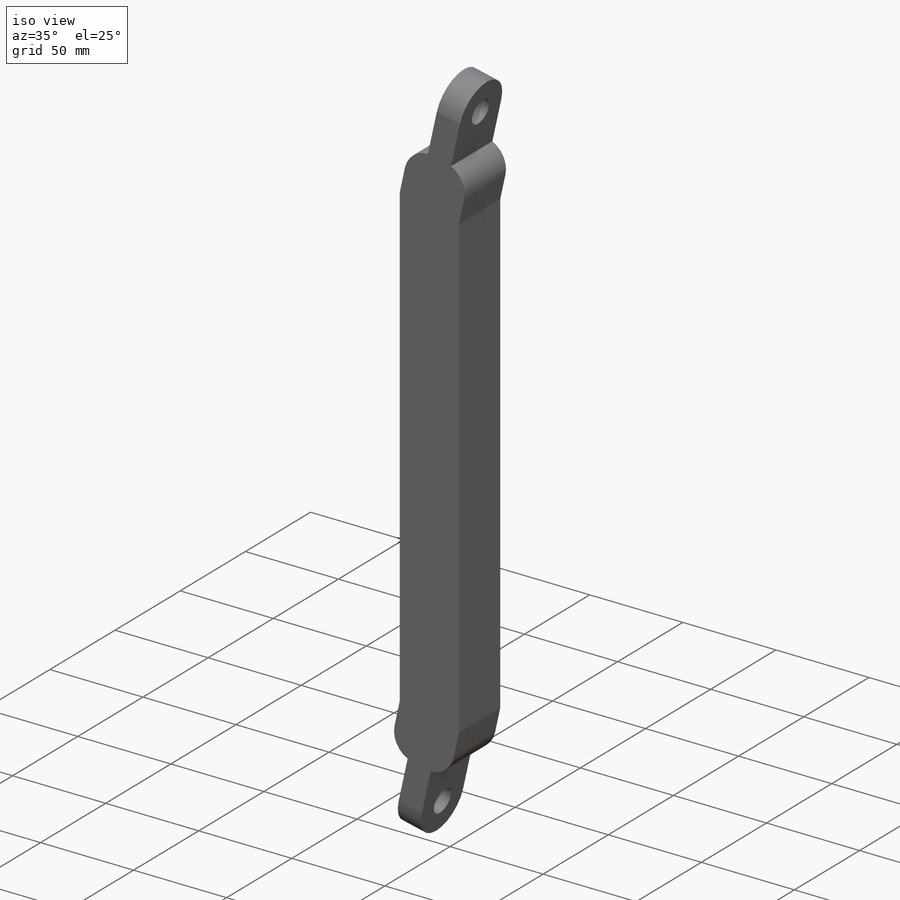
[diagram: iso view]
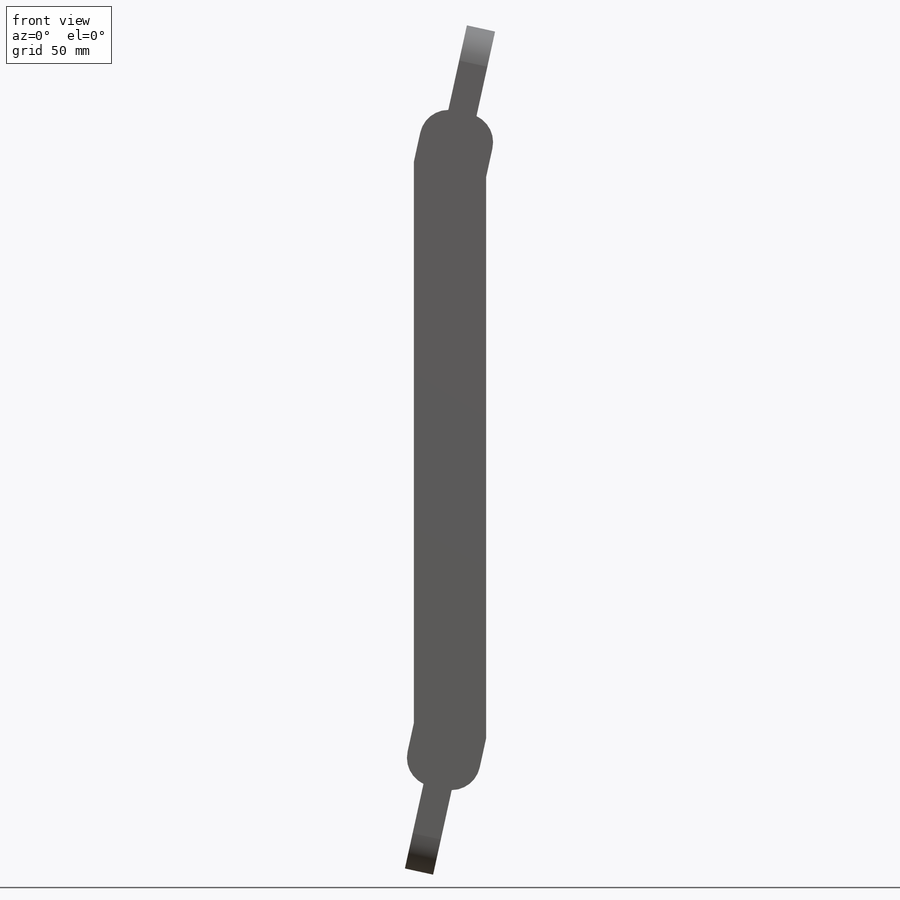
[diagram: front view]
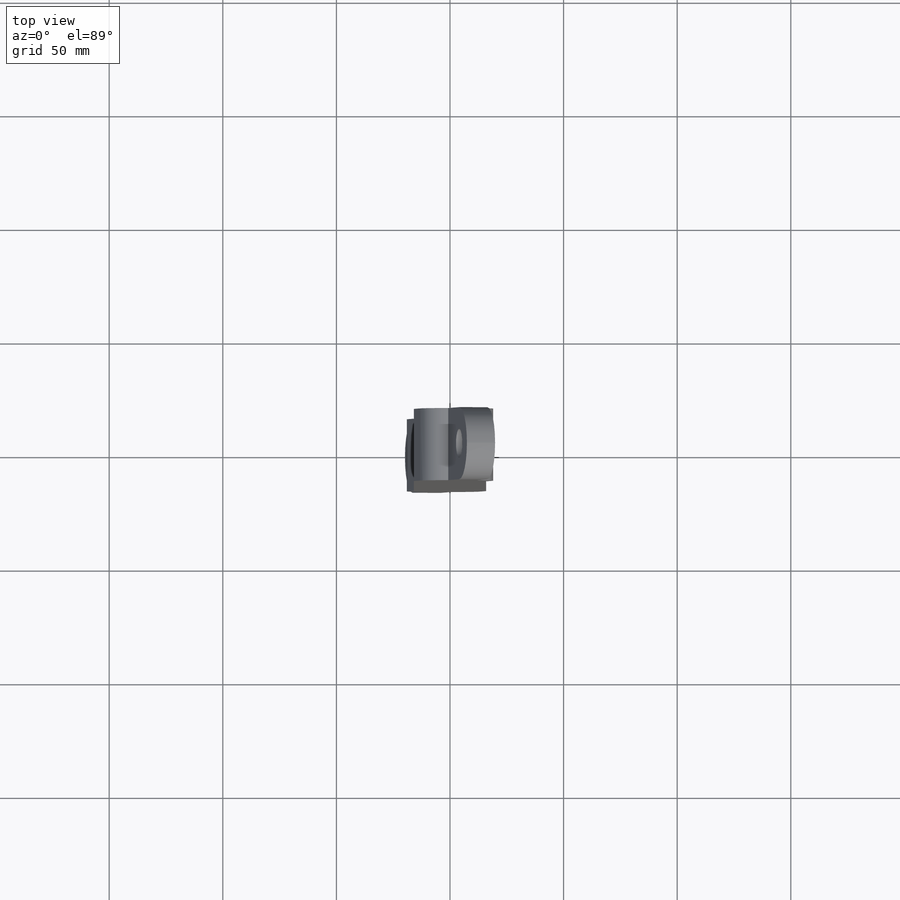
[diagram: top view]
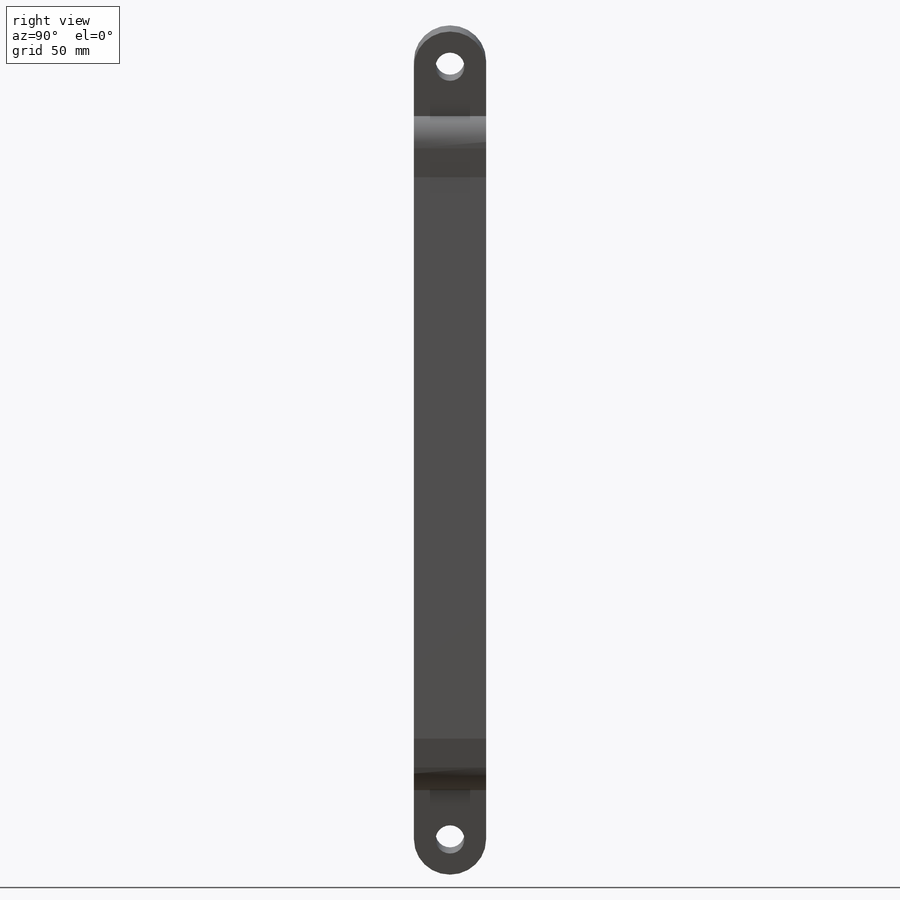
[diagram: right view]
SOLIDWORKS PART (.sldprt)
format: sldprt  version: not decoded by parser v0  size: 179,712 bytes
history: native  units: mm
features: sketch x5, cut_extrude x3, extrude x2, fillet x2, material x1 (+14 scaffold rows collapsed)
feature tree (27):
  scaffold x14  (default folders/planes/origin — collapsed)
  material  "6061 Alloy"
  sketch  "Sketch1"  dims[D1=31.75mm D2=31.75mm D3=15.875mm D4=15.875mm D5=3.175mm]
  extrude  "Extrude1"  Depth=254mm
  sketch  "Sketch2"  dims[D1=63.5mm D2=63.5mm]
  extrude  "Extrude2"  Depth=31.75mm
  sketch  "Sketch3"  dims[c1.D1=12.7mm c1.D2=38.1mm c1.D3=38.1mm c1.D4=12.7mm c1.D5=~7.108803mm c2.D4=9.906mm c2.D5=~9.902803mm c2.D6=12.7mm c2.D7=38.1mm c2.D8=38.1mm c2.D9=9.906mm c2.D10=~9.902803mm]
  cut_extrude  "Extrude3"  [1 undecoded]
  fillet  "Fillet4"  Radius=12.7mm
  fillet  "Fillet5"  Radius=15.875mm
  sketch  "Sketch4"  dims[D1=~7.712316mm]
  cut_extrude  "Extrude4"  [1 undecoded]
  sketch  "Sketch5"  dims[D1=~7.235848mm]
  cut_extrude  "Extrude5"  [1 undecoded]
decode coverage: 9 of 12 modeling features carry decoded parameters
note: ~ marks probable driven/reference dimensions
note: 3 parameter values undecoded
summary: no parameter record found for 3 features
note: suppression state not decoded; provenance and decode notes live in map.json
